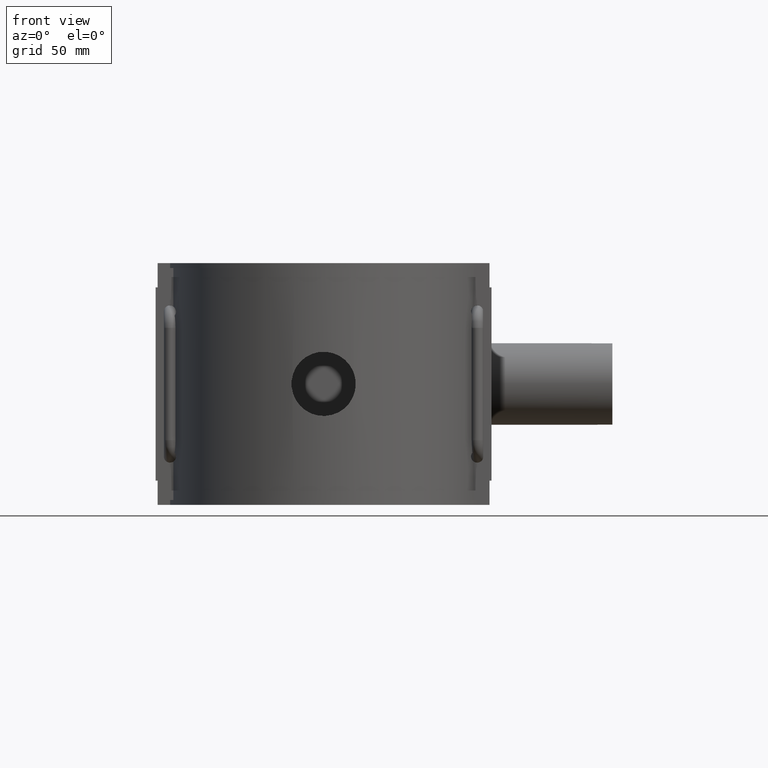
[diagram: clean part render]
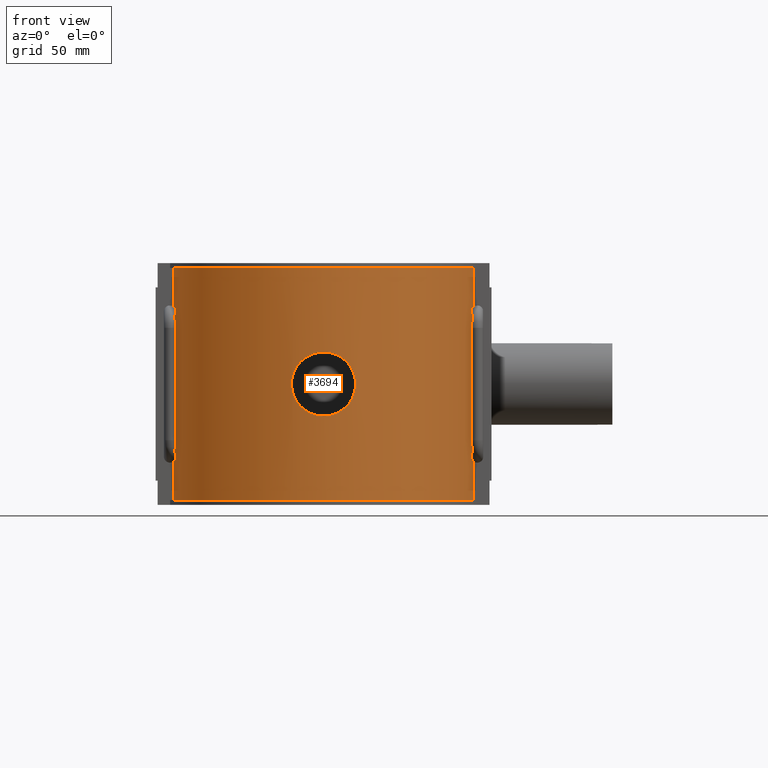
[diagram: same view with one face highlighted and labeled with its STEP entity id]
A machine part, front view. The second image highlights one B-rep face of the part: STEP entity #3694.
In plain terms, the highlighted cylindrical surface (partial cylindrical patch) has radius 75 mm, axis along (0, 0, 1).
Its self-contained STEP definition (entity closure, byte-faithful):
#121=LINE('',#6514,#420);
#145=LINE('',#6715,#444);
#149=LINE('',#6725,#448);
#150=LINE('',#6727,#449);
#151=LINE('',#6759,#450);
#152=LINE('',#6790,#451);
#153=LINE('',#6792,#452);
#154=LINE('',#6794,#453);
#155=LINE('',#6826,#454);
#156=LINE('',#6857,#455);
#420=VECTOR('',#4450,18.7158549721024);
#444=VECTOR('',#4510,18.7158549721024);
#448=VECTOR('',#4518,18.7158549721024);
#449=VECTOR('',#4519,0.0157975317542691);
#450=VECTOR('',#4520,54.7999999999999);
#451=VECTOR('',#4521,0.0157975317542824);
#452=VECTOR('',#4522,18.7158549721024);
#453=VECTOR('',#4523,0.0157975317542736);
#454=VECTOR('',#4524,54.7999999999999);
#455=VECTOR('',#4525,0.0157975317542691);
#826=CIRCLE('',#3938,75.);
#833=CIRCLE('',#3951,75.);
#919=FACE_BOUND('',#1279,.T.);
#1040=FACE_OUTER_BOUND('',#1278,.T.);
#1278=EDGE_LOOP('',(#2858,#2859,#2860,#2861,#2862,#2863,#2864,#2865,#2866,
#2867,#2868,#2869,#2870,#2871,#2872,#2873,#2874,#2875,#2876,#2877));
#1279=EDGE_LOOP('',(#2878));
#1509=B_SPLINE_CURVE_WITH_KNOTS('',3,(#6282,#6283,#6284,#6285,#6286,#6287,
#6288,#6289,#6290,#6291,#6292,#6293,#6294,#6295,#6296,#6297,#6298,#6299,
#6300,#6301,#6302,#6303,#6304,#6305,#6306,#6307,#6308,#6309,#6310,#6311,
#6312,#6313,#6314,#6315,#6316,#6317,#6318,#6319,#6320,#6321,#6322,#6323,
#6324,#6325,#6326,#6327,#6328,#6329,#6330,#6331,#6332,#6333,#6334,#6335,
#6336,#6337,#6338,#6339,#6340,#6341,#6342,#6343,#6344,#6345,#6346,#6347),
 .UNSPECIFIED.,.T.,.F.,(4,2,2,2,2,2,2,2,2,2,2,2,2,2,2,2,2,2,2,2,2,2,2,2,
2,2,2,2,2,2,2,2,4),(0.,0.296274683775203,0.592549367550407,0.88882405132561,
1.18509873510081,1.48135352498161,1.7776083148624,2.07386310474319,2.37011789462398,
2.66637268450477,2.96262747438557,3.25888226426636,3.55513705414715,3.85141173792235,
4.14768642169756,4.44396110547276,4.74023578924797,5.03651047302317,5.33278515679837,
5.62905984057358,5.92533452434878,6.22158931422957,6.51784410411036,6.81409889399116,
7.11035368387195,7.40660847375274,7.70286326363353,7.99911805351432,8.29537284339512,
8.59164752717032,8.88792221094552,9.18419689472073,9.48047157849593),
 .UNSPECIFIED.);
#1518=B_SPLINE_CURVE_WITH_KNOTS('',3,(#6729,#6730,#6731,#6732,#6733,#6734,
#6735,#6736,#6737,#6738,#6739,#6740,#6741,#6742,#6743,#6744,#6745,#6746,
#6747,#6748,#6749,#6750),.UNSPECIFIED.,.F.,.F.,(4,2,2,2,2,2,2,2,2,2,4),
(0.959333598632828,1.04200396827488,1.2156712963207,1.38933862436651,1.51966265347702,
1.55211425186518,1.58456585025334,1.61701744864149,1.64946904702965,1.77979307614016,
1.91887121311702),.UNSPECIFIED.);
#1519=B_SPLINE_CURVE_WITH_KNOTS('',3,(#6752,#6753,#6754,#6755,#6756,#6757),
 .UNSPECIFIED.,.F.,.F.,(4,2,4),(0.435226065281075,0.715006592148486,1.06807586804937),
 .UNSPECIFIED.);
#1520=B_SPLINE_CURVE_WITH_KNOTS('',3,(#6761,#6762,#6763,#6764,#6765,#6766),
 .UNSPECIFIED.,.F.,.F.,(4,2,4),(0.,0.38901115103593,0.535949217786001),
 .UNSPECIFIED.);
#1521=B_SPLINE_CURVE_WITH_KNOTS('',3,(#6768,#6769,#6770,#6771,#6772,#6773,
#6774,#6775,#6776,#6777,#6778,#6779,#6780,#6781,#6782,#6783,#6784,#6785,
#6786,#6787,#6788,#6789),.UNSPECIFIED.,.F.,.F.,(4,2,2,2,2,2,2,2,2,2,4),
(1.25026048738965,1.38933862436651,1.51966265347702,1.55211425186518,1.58456585025334,
1.61701744864149,1.64946904702965,1.77979307614016,1.95346040418598,2.12712773223179,
2.20979810187385),.UNSPECIFIED.);
#1522=B_SPLINE_CURVE_WITH_KNOTS('',3,(#6796,#6797,#6798,#6799,#6800,#6801,
#6802,#6803,#6804,#6805,#6806,#6807,#6808,#6809,#6810,#6811,#6812,#6813,
#6814,#6815,#6816,#6817),.UNSPECIFIED.,.F.,.F.,(4,2,2,2,2,2,2,2,2,2,4),
(0.959538386667959,1.04215602858902,1.21584870002052,1.38954137145202,1.51986951024446,
1.55232167400036,1.58477383775625,1.61722600151215,1.64967816526804,1.78000630406048,
1.91907938580587),.UNSPECIFIED.);
#1523=B_SPLINE_CURVE_WITH_KNOTS('',3,(#6819,#6820,#6821,#6822,#6823,#6824),
 .UNSPECIFIED.,.F.,.F.,(4,2,4),(0.435226138601592,0.715006631922839,1.0680759413015),
 .UNSPECIFIED.);
#1524=B_SPLINE_CURVE_WITH_KNOTS('',3,(#6828,#6829,#6830,#6831,#6832,#6833),
 .UNSPECIFIED.,.F.,.F.,(4,2,4),(0.,0.389011081338118,0.535949233443424),
 .UNSPECIFIED.);
#1525=B_SPLINE_CURVE_WITH_KNOTS('',3,(#6835,#6836,#6837,#6838,#6839,#6840,
#6841,#6842,#6843,#6844,#6845,#6846,#6847,#6848,#6849,#6850,#6851,#6852,
#6853,#6854,#6855,#6856),.UNSPECIFIED.,.F.,.F.,(4,2,2,2,2,2,2,2,2,2,4),
(1.25046828970665,1.38954137145202,1.51986951024446,1.55232167400036,1.58477383775625,
1.61722600151215,1.64967816526805,1.78000630406048,1.95369897549199,2.12739164692349,
2.21000928884455),.UNSPECIFIED.);
#1668=VERTEX_POINT('',#6281);
#1680=VERTEX_POINT('',#6499);
#1681=VERTEX_POINT('',#6501);
#1685=VERTEX_POINT('',#6513);
#1699=VERTEX_POINT('',#6547);
#1700=VERTEX_POINT('',#6549);
#1720=VERTEX_POINT('',#6714);
#1724=VERTEX_POINT('',#6724);
#1725=VERTEX_POINT('',#6726);
#1726=VERTEX_POINT('',#6728);
#1727=VERTEX_POINT('',#6751);
#1728=VERTEX_POINT('',#6758);
#1729=VERTEX_POINT('',#6760);
#1730=VERTEX_POINT('',#6767);
#1731=VERTEX_POINT('',#6791);
#1732=VERTEX_POINT('',#6793);
#1733=VERTEX_POINT('',#6795);
#1734=VERTEX_POINT('',#6818);
#1735=VERTEX_POINT('',#6825);
#1736=VERTEX_POINT('',#6827);
#1737=VERTEX_POINT('',#6834);
#2081=EDGE_CURVE('',#1668,#1668,#1509,.T.);
#2097=EDGE_CURVE('',#1680,#1681,#826,.T.);
#2102=EDGE_CURVE('',#1680,#1685,#121,.T.);
#2119=EDGE_CURVE('',#1700,#1699,#833,.T.);
#2143=EDGE_CURVE('',#1720,#1700,#145,.T.);
#2148=EDGE_CURVE('',#1681,#1724,#149,.T.);
#2149=EDGE_CURVE('',#1724,#1725,#150,.T.);
#2150=EDGE_CURVE('',#1725,#1726,#1518,.T.);
#2151=EDGE_CURVE('',#1726,#1727,#1519,.T.);
#2152=EDGE_CURVE('',#1727,#1728,#151,.T.);
#2153=EDGE_CURVE('',#1728,#1729,#1520,.T.);
#2154=EDGE_CURVE('',#1729,#1730,#1521,.T.);
#2155=EDGE_CURVE('',#1730,#1720,#152,.T.);
#2156=EDGE_CURVE('',#1731,#1699,#153,.T.);
#2157=EDGE_CURVE('',#1732,#1731,#154,.T.);
#2158=EDGE_CURVE('',#1732,#1733,#1522,.T.);
#2159=EDGE_CURVE('',#1733,#1734,#1523,.T.);
#2160=EDGE_CURVE('',#1734,#1735,#155,.T.);
#2161=EDGE_CURVE('',#1735,#1736,#1524,.T.);
#2162=EDGE_CURVE('',#1736,#1737,#1525,.T.);
#2163=EDGE_CURVE('',#1685,#1737,#156,.T.);
#2858=ORIENTED_EDGE('',*,*,#2097,.T.);
#2859=ORIENTED_EDGE('',*,*,#2148,.T.);
#2860=ORIENTED_EDGE('',*,*,#2149,.T.);
#2861=ORIENTED_EDGE('',*,*,#2150,.T.);
#2862=ORIENTED_EDGE('',*,*,#2151,.T.);
#2863=ORIENTED_EDGE('',*,*,#2152,.T.);
#2864=ORIENTED_EDGE('',*,*,#2153,.T.);
#2865=ORIENTED_EDGE('',*,*,#2154,.T.);
#2866=ORIENTED_EDGE('',*,*,#2155,.T.);
#2867=ORIENTED_EDGE('',*,*,#2143,.T.);
#2868=ORIENTED_EDGE('',*,*,#2119,.T.);
#2869=ORIENTED_EDGE('',*,*,#2156,.F.);
#2870=ORIENTED_EDGE('',*,*,#2157,.F.);
#2871=ORIENTED_EDGE('',*,*,#2158,.T.);
#2872=ORIENTED_EDGE('',*,*,#2159,.T.);
#2873=ORIENTED_EDGE('',*,*,#2160,.T.);
#2874=ORIENTED_EDGE('',*,*,#2161,.T.);
#2875=ORIENTED_EDGE('',*,*,#2162,.T.);
#2876=ORIENTED_EDGE('',*,*,#2163,.F.);
#2877=ORIENTED_EDGE('',*,*,#2102,.F.);
#2878=ORIENTED_EDGE('',*,*,#2081,.T.);
#3576=CYLINDRICAL_SURFACE('',#3960,75.);
#3694=ADVANCED_FACE('',(#1040,#919),#3576,.T.);
#3938=AXIS2_PLACEMENT_3D('',#6503,#4440,#4441);
#3951=AXIS2_PLACEMENT_3D('',#6550,#4481,#4482);
#3960=AXIS2_PLACEMENT_3D('',#6723,#4516,#4517);
#4440=DIRECTION('center_axis',(0.,0.,1.));
#4441=DIRECTION('ref_axis',(1.,0.,0.));
#4450=DIRECTION('',(0.,0.,1.));
#4481=DIRECTION('center_axis',(0.,0.,-1.));
#4482=DIRECTION('ref_axis',(1.,0.,0.));
#4510=DIRECTION('',(0.,0.,1.));
#4516=DIRECTION('center_axis',(0.,0.,1.));
#4517=DIRECTION('ref_axis',(1.,0.,0.));
#4518=DIRECTION('',(0.,0.,1.));
#4519=DIRECTION('',(0.,0.,1.));
#4520=DIRECTION('',(0.,0.,1.));
#4521=DIRECTION('',(0.,0.,1.));
#4522=DIRECTION('',(0.,0.,1.));
#4523=DIRECTION('',(0.,0.,1.));
#4524=DIRECTION('',(0.,0.,-1.));
#4525=DIRECTION('',(0.,0.,1.));
#6281=CARTESIAN_POINT('',(15.68,-73.3426042624613,-5.55111512312578E-16));
#6282=CARTESIAN_POINT('Ctrl Pts',(15.68,-73.3426042624613,-5.55111512312578E-16));
#6283=CARTESIAN_POINT('Ctrl Pts',(15.68,-73.3426042624613,-0.987582279250679));
#6284=CARTESIAN_POINT('Ctrl Pts',(15.5851938549339,-73.363091045664,-2.00792991265665));
#6285=CARTESIAN_POINT('Ctrl Pts',(15.186932033155,-73.4465689509711,-4.03573357297926));
#6286=CARTESIAN_POINT('Ctrl Pts',(14.8835722269307,-73.5094952343389,-5.0432110964016));
#6287=CARTESIAN_POINT('Ctrl Pts',(14.0825835310792,-73.6671395301603,-6.97391920174888));
#6288=CARTESIAN_POINT('Ctrl Pts',(13.5843178125829,-73.7618286900924,-7.89874324428029));
#6289=CARTESIAN_POINT('Ctrl Pts',(12.434012369462,-73.9644265746306,-9.60828661626701));
#6290=CARTESIAN_POINT('Ctrl Pts',(11.7818922089941,-74.0721274366199,-10.3929764490161));
#6291=CARTESIAN_POINT('Ctrl Pts',(10.3930230796345,-74.2797284059828,-11.7818455783756));
#6292=CARTESIAN_POINT('Ctrl Pts',(9.6083549059516,-74.386962922263,-12.4339605508233));
#6293=CARTESIAN_POINT('Ctrl Pts',(7.89879788691153,-74.5878658277219,-13.584286912973));
#6294=CARTESIAN_POINT('Ctrl Pts',(6.97393856718635,-74.6813375355928,-14.0825765223716));
#6295=CARTESIAN_POINT('Ctrl Pts',(5.04316162805327,-74.8365185983739,-14.8835917243533));
#6296=CARTESIAN_POINT('Ctrl Pts',(4.0356515794827,-74.8982188946991,-15.1869540478927));
#6297=CARTESIAN_POINT('Ctrl Pts',(2.00783914667932,-74.9799857243942,-15.585205769754));
#6298=CARTESIAN_POINT('Ctrl Pts',(0.987515966269308,-75.,-15.68));
#6299=CARTESIAN_POINT('Ctrl Pts',(-0.987515966269306,-75.,-15.68));
#6300=CARTESIAN_POINT('Ctrl Pts',(-2.00783914667932,-74.9799857243942,-15.585205769754));
#6301=CARTESIAN_POINT('Ctrl Pts',(-4.0356515794827,-74.8982188946991,-15.1869540478927));
#6302=CARTESIAN_POINT('Ctrl Pts',(-5.04316162805327,-74.8365185983739,-14.8835917243533));
#6303=CARTESIAN_POINT('Ctrl Pts',(-6.97393856718634,-74.6813375355928,-14.0825765223716));
#6304=CARTESIAN_POINT('Ctrl Pts',(-7.89879788691153,-74.5878658277219,-13.584286912973));
#6305=CARTESIAN_POINT('Ctrl Pts',(-9.60835490595159,-74.386962922263,-12.4339605508233));
#6306=CARTESIAN_POINT('Ctrl Pts',(-10.3930230796345,-74.2797284059828,-11.7818455783756));
#6307=CARTESIAN_POINT('Ctrl Pts',(-11.7818922089941,-74.0721274366199,-10.3929764490161));
#6308=CARTESIAN_POINT('Ctrl Pts',(-12.434012369462,-73.9644265746306,-9.60828661626702));
#6309=CARTESIAN_POINT('Ctrl Pts',(-13.5843178125829,-73.7618286900924,-7.8987432442803));
#6310=CARTESIAN_POINT('Ctrl Pts',(-14.0825835310792,-73.6671395301603,-6.97391920174889));
#6311=CARTESIAN_POINT('Ctrl Pts',(-14.8835722269307,-73.5094952343389,-5.0432110964016));
#6312=CARTESIAN_POINT('Ctrl Pts',(-15.186932033155,-73.4465689509711,-4.03573357297926));
#6313=CARTESIAN_POINT('Ctrl Pts',(-15.5851938549339,-73.363091045664,-2.00792991265665));
#6314=CARTESIAN_POINT('Ctrl Pts',(-15.68,-73.3426042624613,-0.987582279250679));
#6315=CARTESIAN_POINT('Ctrl Pts',(-15.68,-73.3426042624613,0.98758227925068));
#6316=CARTESIAN_POINT('Ctrl Pts',(-15.5851938549339,-73.363091045664,2.00792991265665));
#6317=CARTESIAN_POINT('Ctrl Pts',(-15.186932033155,-73.4465689509711,4.03573357297926));
#6318=CARTESIAN_POINT('Ctrl Pts',(-14.8835722269307,-73.5094952343389,5.0432110964016));
#6319=CARTESIAN_POINT('Ctrl Pts',(-14.0825835310792,-73.6671395301603,6.97391920174888));
#6320=CARTESIAN_POINT('Ctrl Pts',(-13.5843178125829,-73.7618286900924,7.89874324428029));
#6321=CARTESIAN_POINT('Ctrl Pts',(-12.434012369462,-73.9644265746306,9.60828661626701));
#6322=CARTESIAN_POINT('Ctrl Pts',(-11.7818922089941,-74.0721274366199,10.3929764490161));
#6323=CARTESIAN_POINT('Ctrl Pts',(-10.3930230796345,-74.2797284059828,11.7818455783756));
#6324=CARTESIAN_POINT('Ctrl Pts',(-9.6083549059516,-74.386962922263,12.4339605508233));
#6325=CARTESIAN_POINT('Ctrl Pts',(-7.89879788691153,-74.5878658277219,13.584286912973));
#6326=CARTESIAN_POINT('Ctrl Pts',(-6.97393856718635,-74.6813375355928,14.0825765223716));
#6327=CARTESIAN_POINT('Ctrl Pts',(-5.04316162805327,-74.8365185983739,14.8835917243533));
#6328=CARTESIAN_POINT('Ctrl Pts',(-4.0356515794827,-74.8982188946991,15.1869540478927));
#6329=CARTESIAN_POINT('Ctrl Pts',(-2.00783914667932,-74.9799857243942,15.585205769754));
#6330=CARTESIAN_POINT('Ctrl Pts',(-0.98751596626931,-75.,15.68));
#6331=CARTESIAN_POINT('Ctrl Pts',(0.987515966269304,-75.,15.68));
#6332=CARTESIAN_POINT('Ctrl Pts',(2.00783914667932,-74.9799857243942,15.585205769754));
#6333=CARTESIAN_POINT('Ctrl Pts',(4.0356515794827,-74.8982188946991,15.1869540478927));
#6334=CARTESIAN_POINT('Ctrl Pts',(5.04316162805327,-74.8365185983739,14.8835917243533));
#6335=CARTESIAN_POINT('Ctrl Pts',(6.97393856718634,-74.6813375355928,14.0825765223716));
#6336=CARTESIAN_POINT('Ctrl Pts',(7.89879788691153,-74.5878658277219,13.584286912973));
#6337=CARTESIAN_POINT('Ctrl Pts',(9.60835490595159,-74.386962922263,12.4339605508233));
#6338=CARTESIAN_POINT('Ctrl Pts',(10.3930230796345,-74.2797284059828,11.7818455783756));
#6339=CARTESIAN_POINT('Ctrl Pts',(11.7818922089941,-74.0721274366199,10.3929764490161));
#6340=CARTESIAN_POINT('Ctrl Pts',(12.434012369462,-73.9644265746306,9.60828661626701));
#6341=CARTESIAN_POINT('Ctrl Pts',(13.5843178125829,-73.7618286900924,7.8987432442803));
#6342=CARTESIAN_POINT('Ctrl Pts',(14.0825835310792,-73.6671395301603,6.97391920174889));
#6343=CARTESIAN_POINT('Ctrl Pts',(14.8835722269307,-73.5094952343389,5.04321109640161));
#6344=CARTESIAN_POINT('Ctrl Pts',(15.186932033155,-73.4465689509711,4.03573357297927));
#6345=CARTESIAN_POINT('Ctrl Pts',(15.5851938549339,-73.363091045664,2.00792991265665));
#6346=CARTESIAN_POINT('Ctrl Pts',(15.68,-73.3426042624613,0.98758227925068));
#6347=CARTESIAN_POINT('Ctrl Pts',(15.68,-73.3426042624613,-5.55111512312578E-16));
#6499=CARTESIAN_POINT('',(-73.3543412144094,-15.625,-56.64));
#6501=CARTESIAN_POINT('',(73.3543412144094,-15.625,-56.64));
#6503=CARTESIAN_POINT('Origin',(0.,0.,-56.64));
#6513=CARTESIAN_POINT('',(-73.3543412144094,-15.625,-37.9241450278976));
#6514=CARTESIAN_POINT('',(-73.3543412144094,-15.625,0.));
#6547=CARTESIAN_POINT('',(-73.3543412144094,-15.625,56.64));
#6549=CARTESIAN_POINT('',(73.3543412144094,-15.625,56.64));
#6550=CARTESIAN_POINT('Origin',(0.,0.,56.64));
#6714=CARTESIAN_POINT('',(73.3543412144094,-15.625,37.9241450278976));
#6715=CARTESIAN_POINT('',(73.3543412144094,-15.625,0.));
#6723=CARTESIAN_POINT('Origin',(0.,0.,0.));
#6724=CARTESIAN_POINT('',(73.3543412144094,-15.625,-37.9241450278976));
#6725=CARTESIAN_POINT('',(73.3543412144094,-15.625,0.));
#6726=CARTESIAN_POINT('',(73.3543412144094,-15.625,-37.9083474961433));
#6727=CARTESIAN_POINT('',(73.3543412144094,-15.625,0.));
#6728=CARTESIAN_POINT('',(72.6930073082569,-18.4587835056758,-33.4822448749551));
#6729=CARTESIAN_POINT('Ctrl Pts',(73.3543412144094,-15.625,-37.9083474961433));
#6730=CARTESIAN_POINT('Ctrl Pts',(73.2949615831642,-15.9037682388188,-37.8693901299913));
#6731=CARTESIAN_POINT('Ctrl Pts',(73.2344335415745,-16.1801223613185,-37.8266805639722));
#6732=CARTESIAN_POINT('Ctrl Pts',(73.0437162174961,-17.0282819503004,-37.6802439946248));
#6733=CARTESIAN_POINT('Ctrl Pts',(72.910300198987,-17.5898783078554,-37.5619901307214));
#6734=CARTESIAN_POINT('Ctrl Pts',(72.638581422719,-18.6802617342044,-37.2613847191428));
#6735=CARTESIAN_POINT('Ctrl Pts',(72.4999691455241,-19.2100463394945,-37.0829449363794));
#6736=CARTESIAN_POINT('Ctrl Pts',(72.2602857341514,-20.0898965696968,-36.6411288063099));
#6737=CARTESIAN_POINT('Ctrl Pts',(72.1392804813488,-20.5181480570325,-36.3696365717865));
#6738=CARTESIAN_POINT('Ctrl Pts',(72.0476313259636,-20.8361026176491,-35.9396316030735));
#6739=CARTESIAN_POINT('Ctrl Pts',(72.0302612633155,-20.8960115395091,-35.8386507948665));
#6740=CARTESIAN_POINT('Ctrl Pts',(72.0063389538532,-20.9782979817177,-35.6230614009775));
#6741=CARTESIAN_POINT('Ctrl Pts',(72.,-21.,-35.5081719946272));
#6742=CARTESIAN_POINT('Ctrl Pts',(72.,-21.,-35.2918280053728));
#6743=CARTESIAN_POINT('Ctrl Pts',(72.0063389538532,-20.9782979817177,-35.1769385990225));
#6744=CARTESIAN_POINT('Ctrl Pts',(72.0302612633155,-20.8960115395091,-34.9613492051335));
#6745=CARTESIAN_POINT('Ctrl Pts',(72.0476313259636,-20.8361026176491,-34.8603683969265));
#6746=CARTESIAN_POINT('Ctrl Pts',(72.1392804813488,-20.5181480570325,-34.4303634282135));
#6747=CARTESIAN_POINT('Ctrl Pts',(72.2602857341514,-20.0898965696968,-34.1588711936901));
#6748=CARTESIAN_POINT('Ctrl Pts',(72.4726971355907,-19.3101587506144,-33.767326435423));
#6749=CARTESIAN_POINT('Ctrl Pts',(72.5835464026738,-18.889854296074,-33.6139225358047));
#6750=CARTESIAN_POINT('Ctrl Pts',(72.6930073080282,-18.458783505826,-33.4822448750717));
#6751=CARTESIAN_POINT('',(72.3017579987008,-19.9362932938224,-27.4));
#6752=CARTESIAN_POINT('Ctrl Pts',(72.6930073081899,-18.4587835051892,-33.4822448746922));
#6753=CARTESIAN_POINT('Ctrl Pts',(72.5785287750309,-18.9096143438096,-32.6770287141223));
#6754=CARTESIAN_POINT('Ctrl Pts',(72.4877404087051,-19.2507014771712,-31.8130038901305));
#6755=CARTESIAN_POINT('Ctrl Pts',(72.3413491753497,-19.7946447979827,-29.772190956704));
#6756=CARTESIAN_POINT('Ctrl Pts',(72.3017579987008,-19.9362932938224,-28.5745254056111));
#6757=CARTESIAN_POINT('Ctrl Pts',(72.3017579987008,-19.9362932938224,-27.4));
#6758=CARTESIAN_POINT('',(72.3017579987008,-19.9362932938224,27.3999999999999));
#6759=CARTESIAN_POINT('',(72.3017579987008,-19.9362932938224,27.3999999999999));
#6760=CARTESIAN_POINT('',(72.6930073082569,-18.4587835056758,33.4822448749551));
#6761=CARTESIAN_POINT('Ctrl Pts',(72.3017579987008,-19.9362932938224,27.3999999999999));
#6762=CARTESIAN_POINT('Ctrl Pts',(72.3017579987008,-19.9362932938224,28.6967038367863));
#6763=CARTESIAN_POINT('Ctrl Pts',(72.3512318322327,-19.7640796312793,30.2475631958331));
#6764=CARTESIAN_POINT('Ctrl Pts',(72.5508029176979,-19.0112228259361,32.3825579212651));
#6765=CARTESIAN_POINT('Ctrl Pts',(72.6168043233881,-18.7588804281281,32.9462502811829));
#6766=CARTESIAN_POINT('Ctrl Pts',(72.6930073081899,-18.4587835051891,33.4822448746921));
#6767=CARTESIAN_POINT('',(73.3543412144094,-15.625,37.9083474961433));
#6768=CARTESIAN_POINT('Ctrl Pts',(72.6930073080283,-18.4587835058259,33.4822448750717));
#6769=CARTESIAN_POINT('Ctrl Pts',(72.5835464026738,-18.8898542960739,33.6139225358047));
#6770=CARTESIAN_POINT('Ctrl Pts',(72.4726971355907,-19.3101587506144,33.767326435423));
#6771=CARTESIAN_POINT('Ctrl Pts',(72.2602857341514,-20.0898965696968,34.1588711936901));
#6772=CARTESIAN_POINT('Ctrl Pts',(72.1392804813488,-20.5181480570325,34.4303634282135));
#6773=CARTESIAN_POINT('Ctrl Pts',(72.0476313259636,-20.8361026176491,34.8603683969265));
#6774=CARTESIAN_POINT('Ctrl Pts',(72.0302612633155,-20.8960115395091,34.9613492051335));
#6775=CARTESIAN_POINT('Ctrl Pts',(72.0063389538532,-20.9782979817177,35.1769385990225));
#6776=CARTESIAN_POINT('Ctrl Pts',(72.,-21.,35.2918280053728));
#6777=CARTESIAN_POINT('Ctrl Pts',(72.,-21.,35.5081719946272));
#6778=CARTESIAN_POINT('Ctrl Pts',(72.0063389538532,-20.9782979817177,35.6230614009775));
#6779=CARTESIAN_POINT('Ctrl Pts',(72.0302612633155,-20.8960115395091,35.8386507948665));
#6780=CARTESIAN_POINT('Ctrl Pts',(72.0476313259636,-20.8361026176491,35.9396316030735));
#6781=CARTESIAN_POINT('Ctrl Pts',(72.1392804813488,-20.5181480570325,36.3696365717865));
#6782=CARTESIAN_POINT('Ctrl Pts',(72.2602857341514,-20.0898965696968,36.6411288063099));
#6783=CARTESIAN_POINT('Ctrl Pts',(72.4999691455241,-19.2100463394945,37.0829449363794));
#6784=CARTESIAN_POINT('Ctrl Pts',(72.638581422719,-18.6802617342044,37.2613847191428));
#6785=CARTESIAN_POINT('Ctrl Pts',(72.910300198987,-17.5898783078554,37.5619901307214));
#6786=CARTESIAN_POINT('Ctrl Pts',(73.0437162174961,-17.0282819503004,37.6802439946248));
#6787=CARTESIAN_POINT('Ctrl Pts',(73.2344335415745,-16.1801223613185,37.8266805639722));
#6788=CARTESIAN_POINT('Ctrl Pts',(73.2949615831642,-15.9037682388188,37.8693901299913));
#6789=CARTESIAN_POINT('Ctrl Pts',(73.3543412144094,-15.625,37.9083474961433));
#6790=CARTESIAN_POINT('',(73.3543412144094,-15.625,0.));
#6791=CARTESIAN_POINT('',(-73.3543412144094,-15.625,37.9241450278976));
#6792=CARTESIAN_POINT('',(-73.3543412144094,-15.625,0.));
#6793=CARTESIAN_POINT('',(-73.3543412144094,-15.625,37.9083474961433));
#6794=CARTESIAN_POINT('',(-73.3543412144094,-15.625,0.));
#6795=CARTESIAN_POINT('',(-72.693007308257,-18.4587835056776,33.4822448749554));
#6796=CARTESIAN_POINT('Ctrl Pts',(-73.3543412144094,-15.625,37.9083474961433));
#6797=CARTESIAN_POINT('Ctrl Pts',(-73.2950001671089,-15.9035870996286,37.8694154438713));
#6798=CARTESIAN_POINT('Ctrl Pts',(-73.2345122020023,-16.1797632278738,37.8267360378831));
#6799=CARTESIAN_POINT('Ctrl Pts',(-73.0438213888418,-17.0278337831943,37.6803350953996));
#6800=CARTESIAN_POINT('Ctrl Pts',(-72.9103889230427,-17.5895131955297,37.5620776556277));
#6801=CARTESIAN_POINT('Ctrl Pts',(-72.6386342219294,-18.6800589213893,37.2614537579582));
#6802=CARTESIAN_POINT('Ctrl Pts',(-72.5000023617871,-19.209923105089,37.0830007170505));
#6803=CARTESIAN_POINT('Ctrl Pts',(-72.2602952124034,-20.0898627524497,36.6411503652148));
#6804=CARTESIAN_POINT('Ctrl Pts',(-72.1392854484284,-20.5181307349116,36.3696545965584));
#6805=CARTESIAN_POINT('Ctrl Pts',(-72.0476327891367,-20.8360975639429,35.9396397827442));
#6806=CARTESIAN_POINT('Ctrl Pts',(-72.0302622203003,-20.896008243418,35.838657669462));
#6807=CARTESIAN_POINT('Ctrl Pts',(-72.0063391742301,-20.9782972279947,35.6230651367668));
#6808=CARTESIAN_POINT('Ctrl Pts',(-72.,-21.,35.5081738791863));
#6809=CARTESIAN_POINT('Ctrl Pts',(-72.,-21.,35.2918261208137));
#6810=CARTESIAN_POINT('Ctrl Pts',(-72.0063391742301,-20.9782972279947,35.1769348632332));
#6811=CARTESIAN_POINT('Ctrl Pts',(-72.0302622203003,-20.896008243418,34.961342330538));
#6812=CARTESIAN_POINT('Ctrl Pts',(-72.0476327891367,-20.8360975639429,34.8603602172558));
#6813=CARTESIAN_POINT('Ctrl Pts',(-72.1392854484284,-20.5181307349116,34.4303454034416));
#6814=CARTESIAN_POINT('Ctrl Pts',(-72.2602952124034,-20.0898627524497,34.1588496347852));
#6815=CARTESIAN_POINT('Ctrl Pts',(-72.4727063252086,-19.3101239746207,33.7673138580339));
#6816=CARTESIAN_POINT('Ctrl Pts',(-72.5835510879391,-18.8898358449108,33.6139168995936));
#6817=CARTESIAN_POINT('Ctrl Pts',(-72.6930073080277,-18.4587835058282,33.4822448750723));
#6818=CARTESIAN_POINT('',(-72.3017579987008,-19.9362932938224,27.3999999999999));
#6819=CARTESIAN_POINT('Ctrl Pts',(-72.6930073081899,-18.4587835051894,33.4822448746916));
#6820=CARTESIAN_POINT('Ctrl Pts',(-72.5785287892785,-18.9096142877009,32.6770288143362));
#6821=CARTESIAN_POINT('Ctrl Pts',(-72.4877404307712,-19.2507013940298,31.8130041018387));
#6822=CARTESIAN_POINT('Ctrl Pts',(-72.3413491829096,-19.7946447713447,29.7721911831301));
#6823=CARTESIAN_POINT('Ctrl Pts',(-72.3017579987008,-19.9362932938224,28.5745255161715));
#6824=CARTESIAN_POINT('Ctrl Pts',(-72.3017579987008,-19.9362932938224,27.3999999999999));
#6825=CARTESIAN_POINT('',(-72.3017579987008,-19.9362932938224,-27.4));
#6826=CARTESIAN_POINT('',(-72.3017579987008,-19.9362932938224,27.3999999999999));
#6827=CARTESIAN_POINT('',(-72.693007308257,-18.4587835056776,-33.4822448749554));
#6828=CARTESIAN_POINT('Ctrl Pts',(-72.3017579987008,-19.9362932938224,-27.4));
#6829=CARTESIAN_POINT('Ctrl Pts',(-72.3017579987008,-19.9362932938224,-28.6967036044604));
#6830=CARTESIAN_POINT('Ctrl Pts',(-72.3512318133957,-19.7640796925832,-30.2475626056736));
#6831=CARTESIAN_POINT('Ctrl Pts',(-72.5508028493183,-19.0112230875745,-32.3825573365456));
#6832=CARTESIAN_POINT('Ctrl Pts',(-72.6168042837839,-18.7588805840947,-32.9462500026155));
#6833=CARTESIAN_POINT('Ctrl Pts',(-72.6930073081899,-18.4587835051895,-33.4822448746917));
#6834=CARTESIAN_POINT('',(-73.3543412144094,-15.625,-37.9083474961433));
#6835=CARTESIAN_POINT('Ctrl Pts',(-72.6930073080277,-18.4587835058282,-33.4822448750724));
#6836=CARTESIAN_POINT('Ctrl Pts',(-72.5835510879391,-18.8898358449108,-33.6139168995936));
#6837=CARTESIAN_POINT('Ctrl Pts',(-72.4727063252086,-19.3101239746207,-33.7673138580339));
#6838=CARTESIAN_POINT('Ctrl Pts',(-72.2602952124034,-20.0898627524497,-34.1588496347852));
#6839=CARTESIAN_POINT('Ctrl Pts',(-72.1392854484284,-20.5181307349116,-34.4303454034416));
#6840=CARTESIAN_POINT('Ctrl Pts',(-72.0476327891367,-20.8360975639429,-34.8603602172558));
#6841=CARTESIAN_POINT('Ctrl Pts',(-72.0302622203003,-20.896008243418,-34.961342330538));
#6842=CARTESIAN_POINT('Ctrl Pts',(-72.0063391742301,-20.9782972279947,-35.1769348632332));
#6843=CARTESIAN_POINT('Ctrl Pts',(-72.,-21.,-35.2918261208137));
#6844=CARTESIAN_POINT('Ctrl Pts',(-72.,-21.,-35.5081738791863));
#6845=CARTESIAN_POINT('Ctrl Pts',(-72.0063391742301,-20.9782972279947,-35.6230651367668));
#6846=CARTESIAN_POINT('Ctrl Pts',(-72.0302622203003,-20.896008243418,-35.838657669462));
#6847=CARTESIAN_POINT('Ctrl Pts',(-72.0476327891367,-20.8360975639429,-35.9396397827442));
#6848=CARTESIAN_POINT('Ctrl Pts',(-72.1392854484284,-20.5181307349116,-36.3696545965584));
#6849=CARTESIAN_POINT('Ctrl Pts',(-72.2602952124034,-20.0898627524497,-36.6411503652148));
#6850=CARTESIAN_POINT('Ctrl Pts',(-72.5000023617871,-19.209923105089,-37.0830007170505));
#6851=CARTESIAN_POINT('Ctrl Pts',(-72.6386342219294,-18.6800589213893,-37.2614537579582));
#6852=CARTESIAN_POINT('Ctrl Pts',(-72.9103889230427,-17.5895131955297,-37.5620776556277));
#6853=CARTESIAN_POINT('Ctrl Pts',(-73.0438213888418,-17.0278337831943,-37.6803350953997));
#6854=CARTESIAN_POINT('Ctrl Pts',(-73.2345122020023,-16.1797632278738,-37.8267360378831));
#6855=CARTESIAN_POINT('Ctrl Pts',(-73.2950001671089,-15.9035870996286,-37.8694154438713));
#6856=CARTESIAN_POINT('Ctrl Pts',(-73.3543412144094,-15.625,-37.9083474961433));
#6857=CARTESIAN_POINT('',(-73.3543412144094,-15.625,0.));